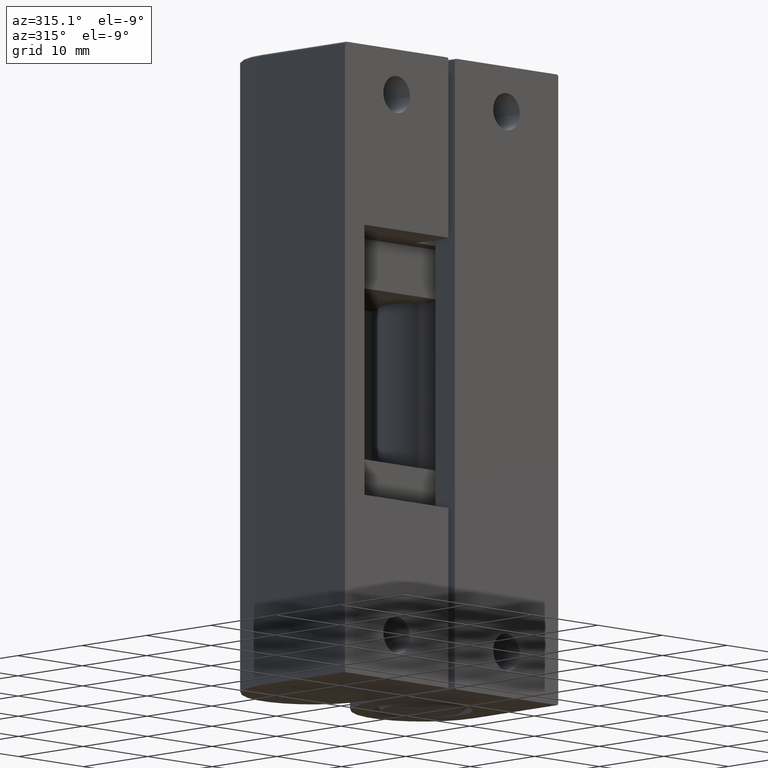
[diagram: clean part render]
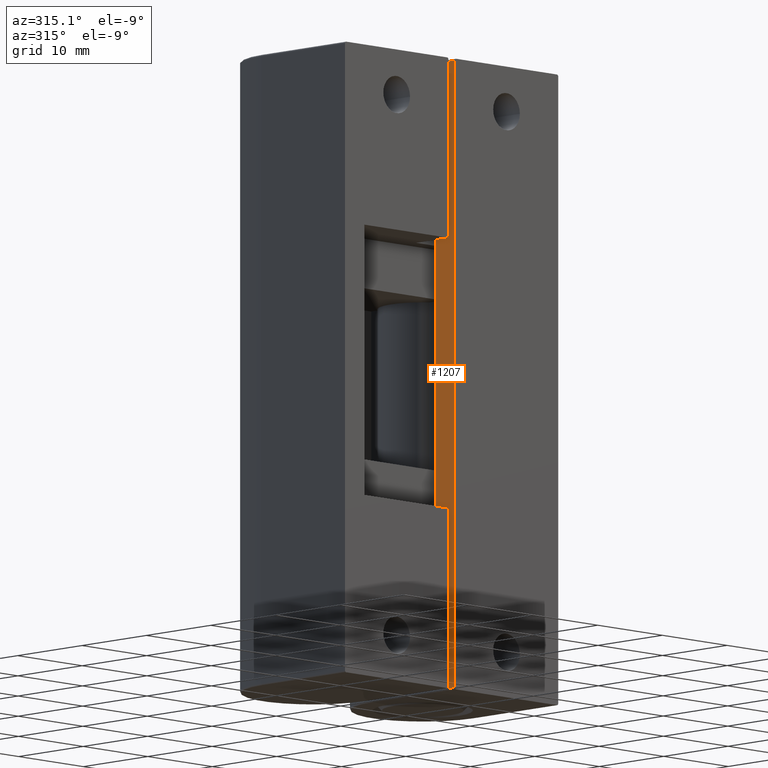
[diagram: same view with one face highlighted and labeled with its STEP entity id]
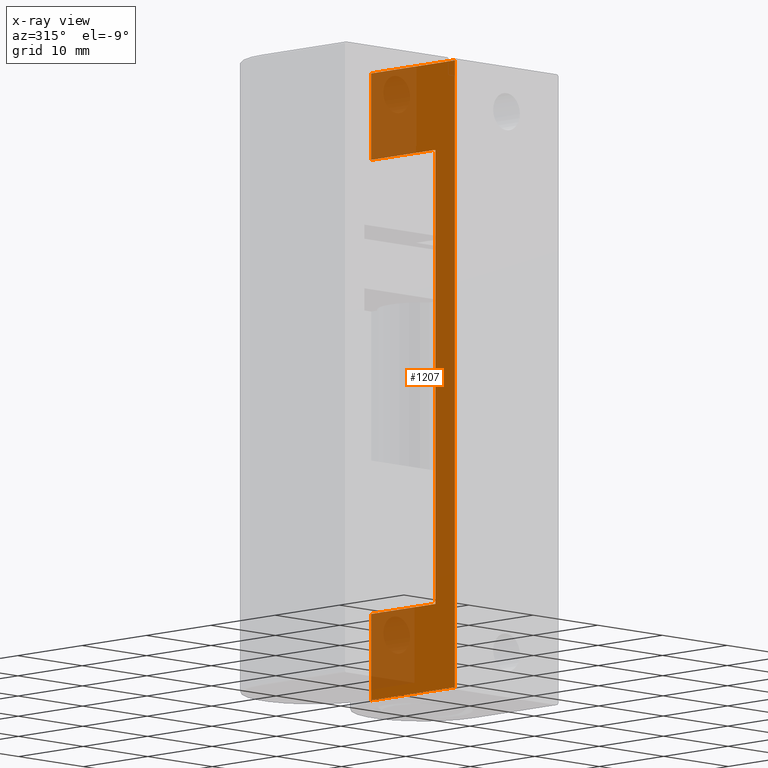
[diagram: x-ray of the same camera — body ghosted, the highlighted face saturated]
A machine part, auxiliary view. The second image highlights one B-rep face of the part: STEP entity #1207.
The next image is the same camera in x-ray: the body ghosted, the highlighted face saturated — about 31% of this face is hidden behind the body in this view.
In plain terms, the highlighted planar face has unit normal (-1, -0, -0).
Its self-contained STEP definition (entity closure, byte-faithful):
#90=PLANE('',#1334);
#157=FACE_OUTER_BOUND('',#249,.T.);
#249=EDGE_LOOP('',(#1052,#1053,#1054,#1055,#1056,#1057,#1058,#1059));
#346=LINE('',#2085,#437);
#355=LINE('',#2111,#446);
#356=LINE('',#2117,#447);
#357=LINE('',#2120,#448);
#358=LINE('',#2122,#449);
#359=LINE('',#2124,#450);
#360=LINE('',#2126,#451);
#361=LINE('',#2127,#452);
#437=VECTOR('',#1631,13.);
#446=VECTOR('',#1656,9.60000000000001);
#447=VECTOR('',#1665,69.6);
#448=VECTOR('',#1668,13.);
#449=VECTOR('',#1669,9.6);
#450=VECTOR('',#1670,10.);
#451=VECTOR('',#1671,50.4);
#452=VECTOR('',#1672,10.);
#609=VERTEX_POINT('',#2082);
#610=VERTEX_POINT('',#2084);
#619=VERTEX_POINT('',#2110);
#620=VERTEX_POINT('',#2115);
#621=VERTEX_POINT('',#2119);
#622=VERTEX_POINT('',#2121);
#623=VERTEX_POINT('',#2123);
#624=VERTEX_POINT('',#2125);
#753=EDGE_CURVE('',#609,#610,#346,.T.);
#766=EDGE_CURVE('',#610,#619,#355,.T.);
#770=EDGE_CURVE('',#620,#609,#356,.T.);
#771=EDGE_CURVE('',#621,#620,#357,.T.);
#772=EDGE_CURVE('',#622,#621,#358,.T.);
#773=EDGE_CURVE('',#623,#622,#359,.T.);
#774=EDGE_CURVE('',#624,#623,#360,.T.);
#775=EDGE_CURVE('',#619,#624,#361,.T.);
#1052=ORIENTED_EDGE('',*,*,#753,.F.);
#1053=ORIENTED_EDGE('',*,*,#770,.F.);
#1054=ORIENTED_EDGE('',*,*,#771,.F.);
#1055=ORIENTED_EDGE('',*,*,#772,.F.);
#1056=ORIENTED_EDGE('',*,*,#773,.F.);
#1057=ORIENTED_EDGE('',*,*,#774,.F.);
#1058=ORIENTED_EDGE('',*,*,#775,.F.);
#1059=ORIENTED_EDGE('',*,*,#766,.F.);
#1207=ADVANCED_FACE('',(#157),#90,.T.);
#1334=AXIS2_PLACEMENT_3D('',#2118,#1666,#1667);
#1631=DIRECTION('',(-2.56205313375036E-16,1.,0.));
#1656=DIRECTION('',(0.,0.,1.));
#1665=DIRECTION('',(0.,0.,-1.));
#1666=DIRECTION('center_axis',(-1.,-2.56205313375036E-16,0.));
#1667=DIRECTION('ref_axis',(-1.77635683940025E-16,1.,0.));
#1668=DIRECTION('',(2.56205313375036E-16,-1.,0.));
#1669=DIRECTION('',(0.,0.,1.));
#1670=DIRECTION('',(-2.56205313375036E-16,1.,0.));
#1671=DIRECTION('',(0.,0.,1.));
#1672=DIRECTION('',(2.56205313375036E-16,-1.,0.));
#2082=CARTESIAN_POINT('',(-8.,0.,-69.8));
#2084=CARTESIAN_POINT('',(-8.,13.,-69.8));
#2085=CARTESIAN_POINT('',(-8.,6.5,-69.8));
#2110=CARTESIAN_POINT('',(-8.,13.,-60.2));
#2111=CARTESIAN_POINT('',(-8.,13.,0.));
#2115=CARTESIAN_POINT('',(-8.,0.,-0.2));
#2117=CARTESIAN_POINT('',(-8.,0.,0.));
#2118=CARTESIAN_POINT('Origin',(-8.,0.,0.));
#2119=CARTESIAN_POINT('',(-8.,13.,-0.2));
#2120=CARTESIAN_POINT('',(-8.,6.5,-0.2));
#2121=CARTESIAN_POINT('',(-8.,13.,-9.8));
#2122=CARTESIAN_POINT('',(-8.,13.,0.));
#2123=CARTESIAN_POINT('',(-8.,3.,-9.8));
#2124=CARTESIAN_POINT('',(-8.,1.5,-9.8));
#2125=CARTESIAN_POINT('',(-8.,3.,-60.2));
#2126=CARTESIAN_POINT('',(-8.,3.,-17.5));
#2127=CARTESIAN_POINT('',(-8.,1.5,-60.2));